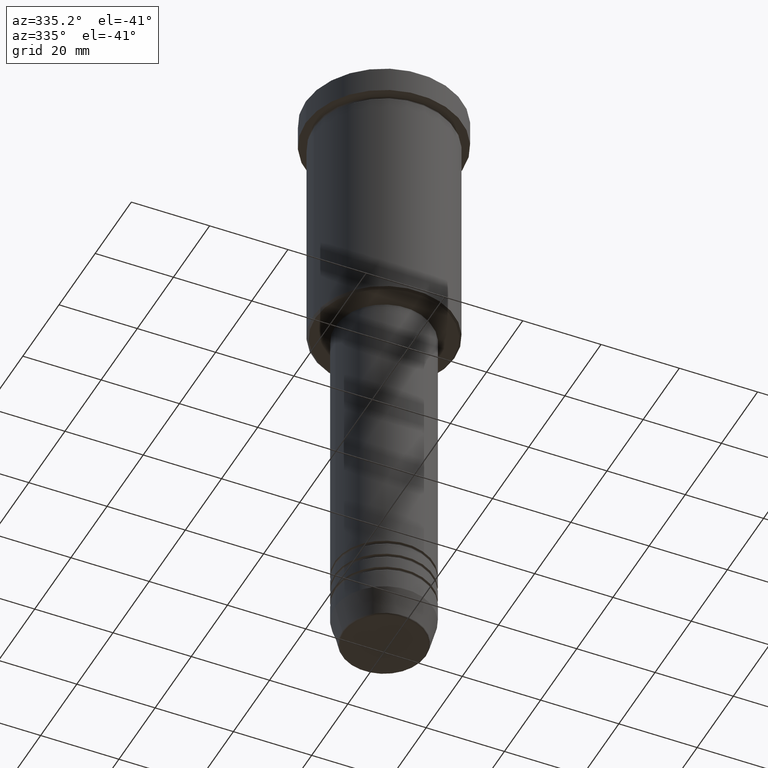
[diagram: clean part render]
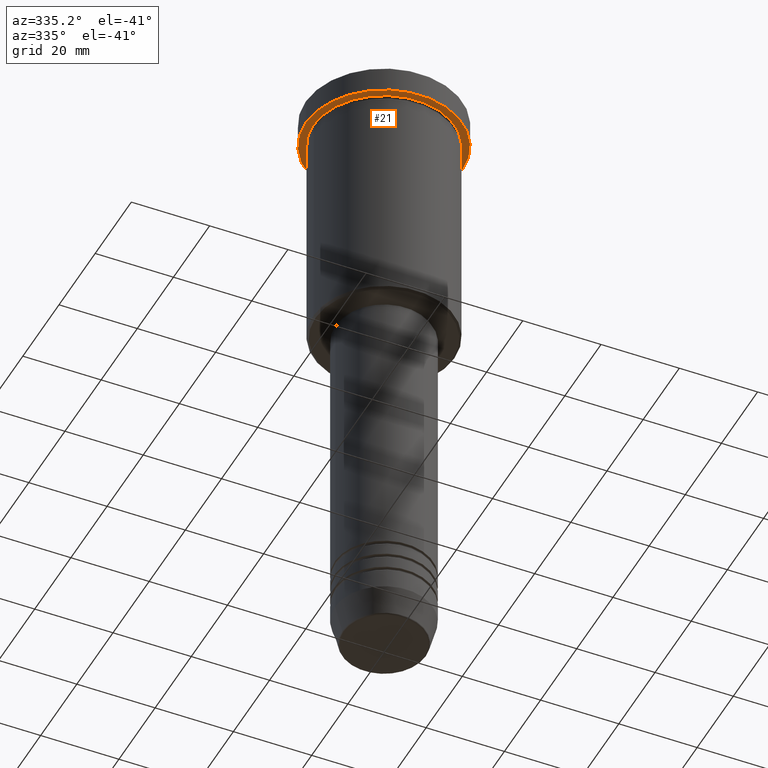
[diagram: same view with one face highlighted and labeled with its STEP entity id]
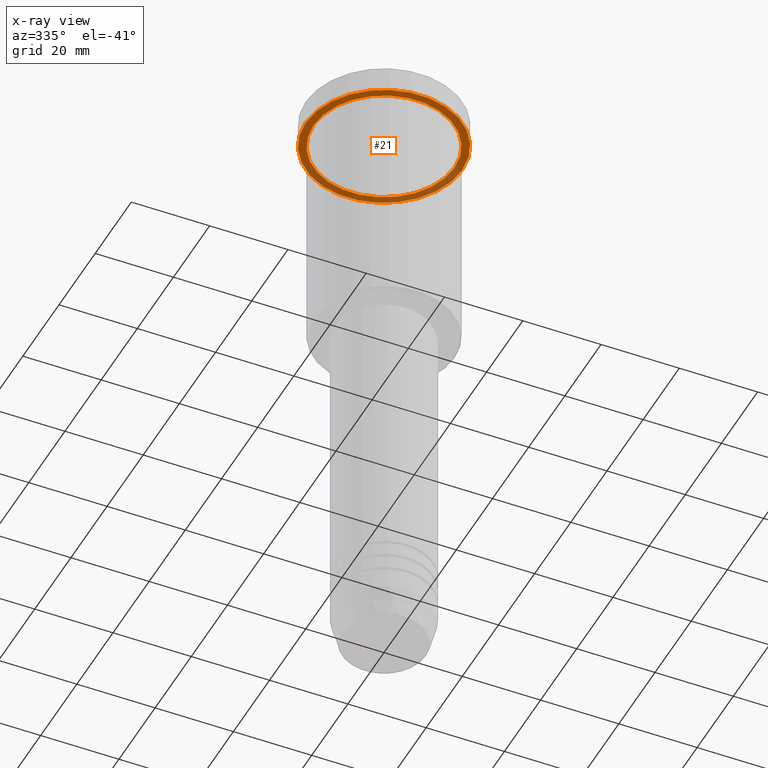
[diagram: x-ray of the same camera — body ghosted, the highlighted face saturated]
A machine part, auxiliary view. The second image highlights one B-rep face of the part: STEP entity #21.
The next image is the same camera in x-ray: the body ghosted, the highlighted face saturated — about 37% of this face is hidden behind the body in this view.
In plain terms, the highlighted planar face has unit normal (0, 0, -1).
Its self-contained STEP definition (entity closure, byte-faithful):
#12 = VERTEX_POINT ( 'NONE', #304 ) ;
#21 = ADVANCED_FACE ( 'NONE', ( #657, #488 ), #361, .T. ) ;
#35 = DIRECTION ( 'NONE',  ( -0.000000000000000000, -0.000000000000000000, 1.000000000000000000 ) ) ;
#141 = DIRECTION ( 'NONE',  ( -0.000000000000000000, -0.000000000000000000, 1.000000000000000000 ) ) ;
#149 = DIRECTION ( 'NONE',  ( -0.000000000000000000, -0.000000000000000000, 1.000000000000000000 ) ) ;
#181 = DIRECTION ( 'NONE',  ( -0.000000000000000000, -0.000000000000000000, 1.000000000000000000 ) ) ;
#273 = VERTEX_POINT ( 'NONE', #500 ) ;
#280 = DIRECTION ( 'NONE',  ( 0.000000000000000000, 0.000000000000000000, -1.000000000000000000 ) ) ;
#284 = DIRECTION ( 'NONE',  ( -1.000000000000000000, 0.000000000000000000, -0.000000000000000000 ) ) ;
#286 = CIRCLE ( 'NONE', #432, 18.00000000000000000 ) ;
#304 = CARTESIAN_POINT ( 'NONE',  ( 20.00000000000000000, 0.000000000000000000, -6.999999999999995559 ) ) ;
#309 = AXIS2_PLACEMENT_3D ( 'NONE', #582, #141, #934 ) ;
#353 = EDGE_CURVE ( 'NONE', #273, #1103, #857, .T. ) ;
#361 = PLANE ( 'NONE',  #395 ) ;
#378 = AXIS2_PLACEMENT_3D ( 'NONE', #808, #181, #910 ) ;
#395 = AXIS2_PLACEMENT_3D ( 'NONE', #1076, #280, #284 ) ;
#410 = EDGE_CURVE ( 'NONE', #1103, #273, #286, .T. ) ;
#432 = AXIS2_PLACEMENT_3D ( 'NONE', #945, #149, #783 ) ;
#482 = ORIENTED_EDGE ( 'NONE', *, *, #750, .F. ) ;
#488 = FACE_OUTER_BOUND ( 'NONE', #550, .T. ) ;
#496 = AXIS2_PLACEMENT_3D ( 'NONE', #984, #35, #1144 ) ;
#500 = CARTESIAN_POINT ( 'NONE',  ( -18.00000000000000000, 0.000000000000000000, -6.999999999999995559 ) ) ;
#550 = EDGE_LOOP ( 'NONE', ( #482, #557 ) ) ;
#557 = ORIENTED_EDGE ( 'NONE', *, *, #977, .F. ) ;
#582 = CARTESIAN_POINT ( 'NONE',  ( 0.000000000000000000, 0.000000000000000000, -6.999999999999995559 ) ) ;
#645 = CARTESIAN_POINT ( 'NONE',  ( -20.00000000000000000, 2.449293598294706513E-15, -6.999999999999995559 ) ) ;
#657 = FACE_BOUND ( 'NONE', #816, .T. ) ;
#750 = EDGE_CURVE ( 'NONE', #12, #955, #1069, .T. ) ;
#783 = DIRECTION ( 'NONE',  ( -1.000000000000000000, 0.000000000000000000, 0.000000000000000000 ) ) ;
#808 = CARTESIAN_POINT ( 'NONE',  ( 0.000000000000000000, 0.000000000000000000, -6.999999999999995559 ) ) ;
#816 = EDGE_LOOP ( 'NONE', ( #1165, #1167 ) ) ;
#847 = CARTESIAN_POINT ( 'NONE',  ( 18.00000000000000000, 2.204364238465235428E-15, -6.999999999999995559 ) ) ;
#857 = CIRCLE ( 'NONE', #496, 18.00000000000000000 ) ;
#887 = CIRCLE ( 'NONE', #378, 20.00000000000000000 ) ;
#910 = DIRECTION ( 'NONE',  ( 1.000000000000000000, 0.000000000000000000, 0.000000000000000000 ) ) ;
#934 = DIRECTION ( 'NONE',  ( 1.000000000000000000, 0.000000000000000000, 0.000000000000000000 ) ) ;
#945 = CARTESIAN_POINT ( 'NONE',  ( 0.000000000000000000, 0.000000000000000000, -6.999999999999995559 ) ) ;
#955 = VERTEX_POINT ( 'NONE', #645 ) ;
#977 = EDGE_CURVE ( 'NONE', #955, #12, #887, .T. ) ;
#984 = CARTESIAN_POINT ( 'NONE',  ( 0.000000000000000000, 0.000000000000000000, -6.999999999999995559 ) ) ;
#1069 = CIRCLE ( 'NONE', #309, 20.00000000000000000 ) ;
#1076 = CARTESIAN_POINT ( 'NONE',  ( 0.000000000000000000, 20.00000000000000000, -6.999999999999995559 ) ) ;
#1103 = VERTEX_POINT ( 'NONE', #847 ) ;
#1144 = DIRECTION ( 'NONE',  ( -1.000000000000000000, 0.000000000000000000, 0.000000000000000000 ) ) ;
#1165 = ORIENTED_EDGE ( 'NONE', *, *, #353, .T. ) ;
#1167 = ORIENTED_EDGE ( 'NONE', *, *, #410, .T. ) ;